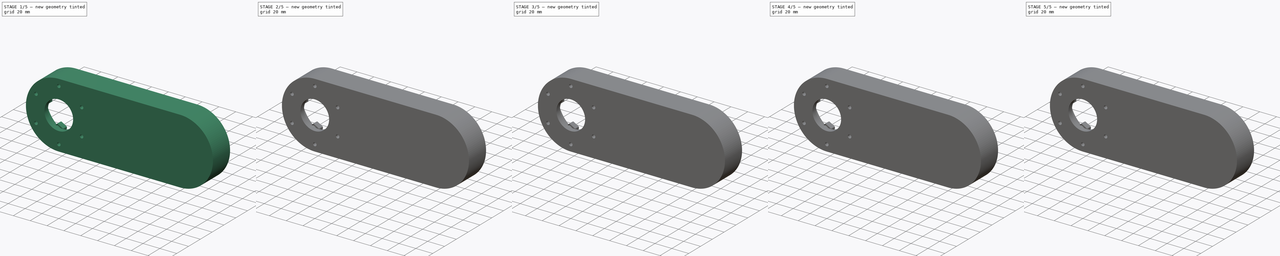
[diagram: build sequence overview — one tinted view per stage of 5, left to right]
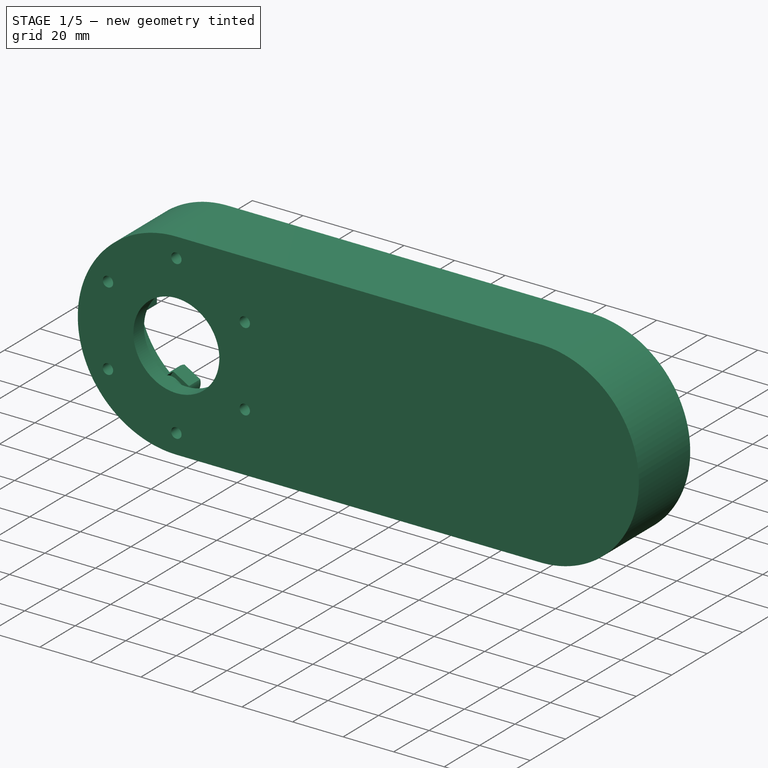
[diagram: stage 1 of 5 — iso view after this stage's code; geometry added in this stage tinted green]
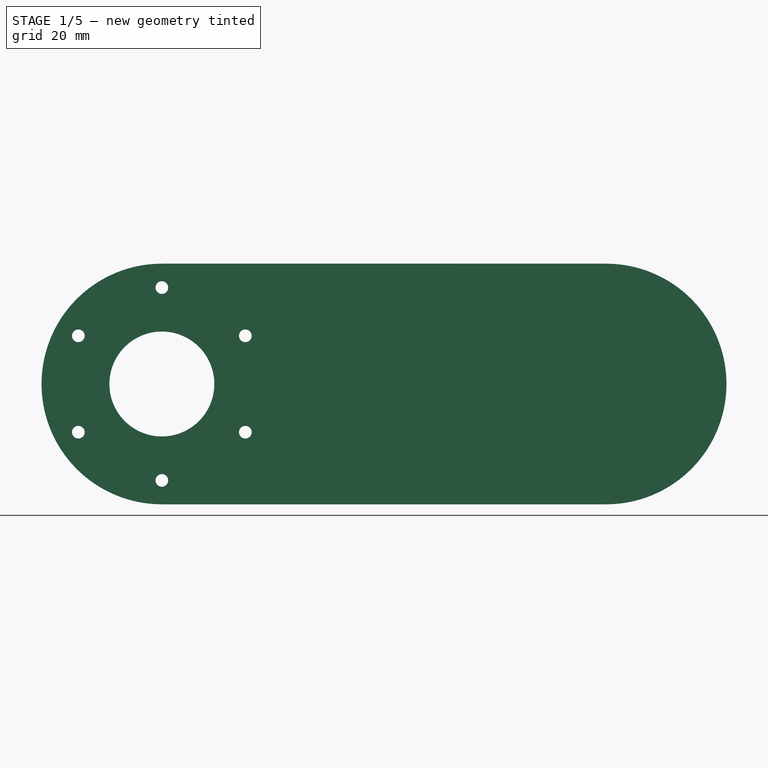
[diagram: stage 1 of 5 — front view after this stage's code; geometry added in this stage tinted green]
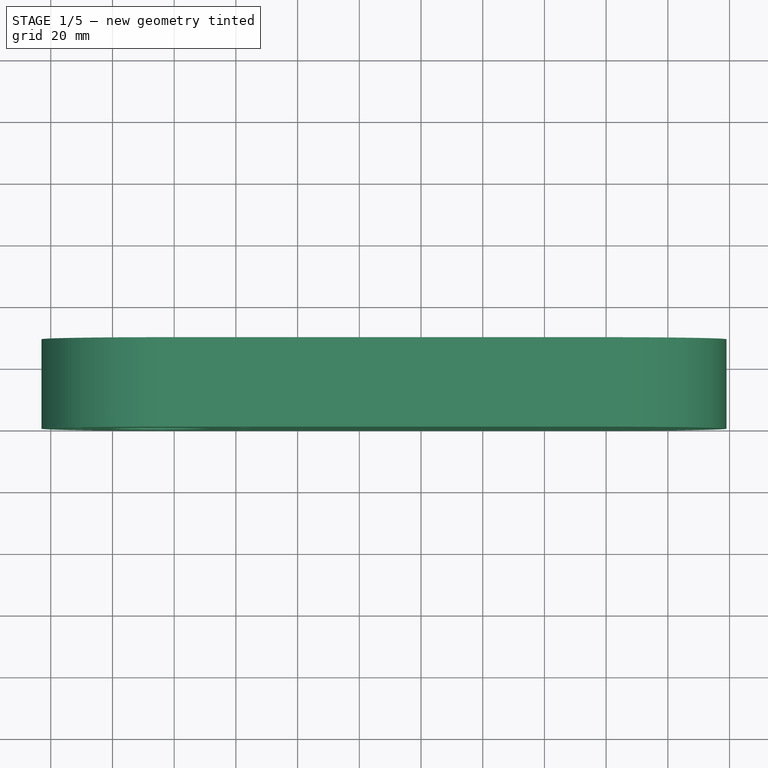
[diagram: stage 1 of 5 — top view after this stage's code; geometry added in this stage tinted green]
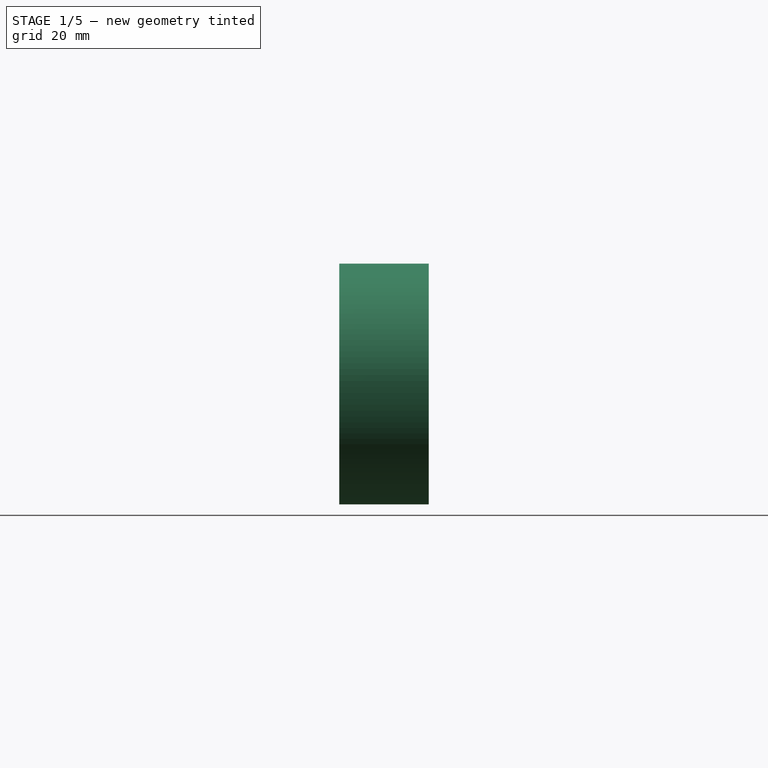
[diagram: stage 1 of 5 — right view after this stage's code; geometry added in this stage tinted green]
FCSTD DOCUMENT  (FreeCAD 0.19R24276 (Git))
Label: Arm2_modified
License: All rights reserved
LicenseURL: http://en.wikipedia.org/wiki/All_rights_reserved
objects: PartDesign::Pocket×13, Sketcher::SketchObject×3, Part::Feature×1, PartDesign::FeatureBase×1, PartDesign::Pad×1, PartDesign::Body×1
note: 34 computed .brp shape members not serialized (recipe doc carries the construction recipe); baked Part::Feature solids carry a one-line shape summary decoded from their .brp

FEATURE [Part::Feature] Part__Feature  label="Arm 2_Arm 2"
  shape: bbox 222 x 31 x 78 mm, 223 faces (baked)
FEATURE [PartDesign::FeatureBase] BaseFeature
  BaseFeature = -> Part__Feature
FEATURE [PartDesign::Pocket] Pocket
  BaseFeature = -> BaseFeature
  Length = 2
  Length2 = 100
  Profile = -> BaseFeature [Face49]
  Type = 0
FEATURE [Sketcher::SketchObject] Sketch
  FullyConstrained = true
  MapMode = 5
  Placement = pos=(0,29,0) rot=(0,0.707107,0.707107;3.14159rad)
  Support = -> [Pocket]
  sketch-geometry (20):
    g0: LineSegment StartX=34.3 StartY=27.96 StartZ=0 EndX=103.3 EndY=27.96 EndZ=0
    g1: LineSegment StartX=103.3 StartY=27.96 StartZ=0 EndX=103.3 EndY=-27.96 EndZ=0
    g2: LineSegment StartX=103.3 StartY=-27.96 StartZ=0 EndX=34.3 EndY=-27.96 EndZ=0
    g3: LineSegment StartX=34.3 StartY=-27.96 StartZ=0 EndX=34.3 EndY=27.96 EndZ=0
    g4: LineSegment StartX=-28 StartY=5 StartZ=0 EndX=-26 EndY=5 EndZ=0
    g5: LineSegment StartX=-26 StartY=5 StartZ=0 EndX=-26 EndY=-5 EndZ=0
    g6: LineSegment StartX=-26 StartY=-5 StartZ=0 EndX=-28 EndY=-5 EndZ=0
    g7: LineSegment StartX=-28 StartY=-5 StartZ=0 EndX=-28 EndY=5 EndZ=0
    g8: LineSegment StartX=-20.75 StartY=19.105 StartZ=0 EndX=-15.23 EndY=23.73 EndZ=0
    g9: LineSegment StartX=-15.23 StartY=23.73 StartZ=0 EndX=-15.23 EndY=-23.73 EndZ=0
    g10: LineSegment StartX=-15.23 StartY=-23.73 StartZ=0 EndX=-20.75 EndY=-19.105 EndZ=0
    g11: LineSegment StartX=-20.75 StartY=-19.105 StartZ=0 EndX=-20.75 EndY=19.105 EndZ=0
    g12: LineSegment StartX=154.85 StartY=26.015 StartZ=0 EndX=161.09 EndY=22.415 EndZ=0
    g13: LineSegment StartX=161.09 StartY=22.415 StartZ=0 EndX=161.09 EndY=-22.415 EndZ=0
    g14: LineSegment StartX=161.09 StartY=-22.415 StartZ=0 EndX=154.85 EndY=-26.015 EndZ=0
    g15: LineSegment StartX=154.85 StartY=-26.015 StartZ=0 EndX=154.85 EndY=26.015 EndZ=0
    g16: LineSegment StartX=170 StartY=5 StartZ=0 EndX=172 EndY=5 EndZ=0
    g17: LineSegment StartX=172 StartY=5 StartZ=0 EndX=172 EndY=-5 EndZ=0
    g18: LineSegment StartX=172 StartY=-5 StartZ=0 EndX=170 EndY=-5 EndZ=0
    g19: LineSegment StartX=170 StartY=-5 StartZ=0 EndX=170 EndY=5 EndZ=0
  constraints (53):
    c: Coincident(g0,g1)
    c: Coincident(g1,g2)
    c: Coincident(g2,g3)
    c: Coincident(g3,g0)
    c: Horizontal(g0)
    c: Horizontal(g2)
    c: Vertical(g1)
    c: Symmetric(g0,g2,g-1)
    c: DistanceY(g3,g3) = 55.92
    c: DistanceX(g2) = 34.3
    c: DistanceX(g2,g2) = 69
    c: Coincident(g4,g5)
    c: Coincident(g5,g6)
    c: Coincident(g6,g7)
    c: Coincident(g7,g4)
    c: Horizontal(g4)
    c: Horizontal(g6)
    c: Vertical(g5)
    c: Symmetric(g4,g6,g-1)
    c: DistanceY(g7,g7) = 10
    c: DistanceX(g4,g4) = 2
    c: DistanceX(g4) = -26
    c: Coincident(g8,g9)
    c: Coincident(g9,g10)
    c: Coincident(g10,g11)
    c: Coincident(g11,g8)
    c: Symmetric(g8,g10,g-1)
    c: Symmetric(g9,g8,g-1)
    c: DistanceY(g11,g11) = 38.21
    c: DistanceY(g9,g9) = 47.46
    c: DistanceX(g8,g8) = 5.52
    c: DistanceX(g8) = -15.23
    c: Coincident(g12,g13)
    c: Coincident(g13,g14)
    c: Coincident(g14,g15)
    c: Coincident(g15,g12)
    c: Symmetric(g12,g14,g-1)
    c: Symmetric(g12,g13,g-1)
    c: DistanceY(g13,g13) = 44.83
    c: DistanceY(g15,g15) = 52.03
    c: DistanceX(g12,g12) = 6.24
    c: Coincident(g16,g17)
    c: Coincident(g17,g18)
    c: Coincident(g18,g19)
    c: Coincident(g19,g16)
    c: Horizontal(g16)
    c: Horizontal(g18)
    c: Vertical(g19)
    c: Symmetric(g16,g17,g-1)
    c: DistanceY(g17,g17) = 10
    c: DistanceX(g18,g18) = 2
    c: DistanceX(g18) = 170
    c: DistanceX(g14) = 154.85
FEATURE [PartDesign::Pocket] Pocket001
  BaseFeature = -> Pocket
  Length = 9.99
  Length2 = 100
  Profile = -> Sketch
  Type = 0
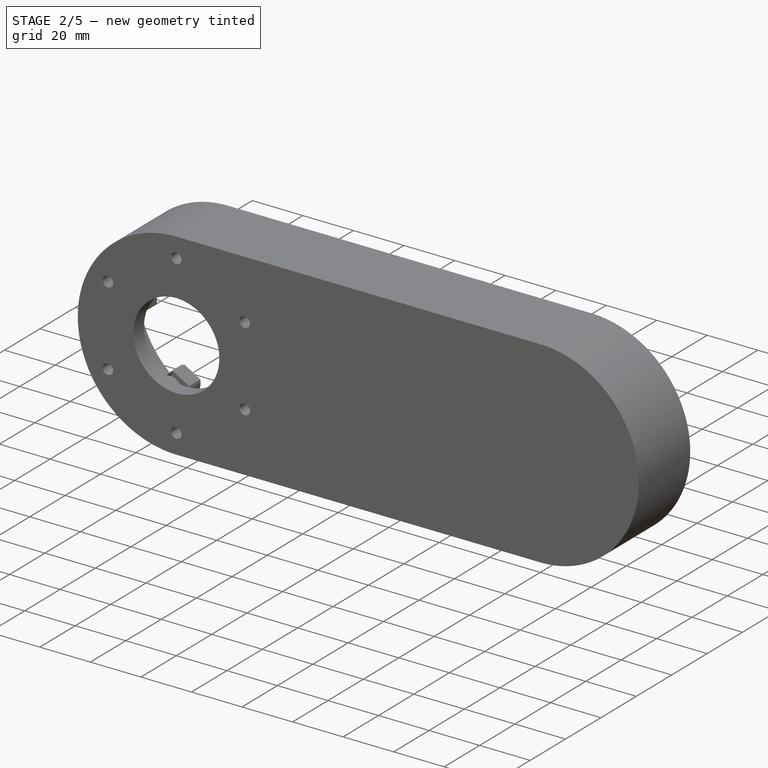
[diagram: stage 2 of 5 — iso view after this stage's code; geometry added in this stage tinted green]
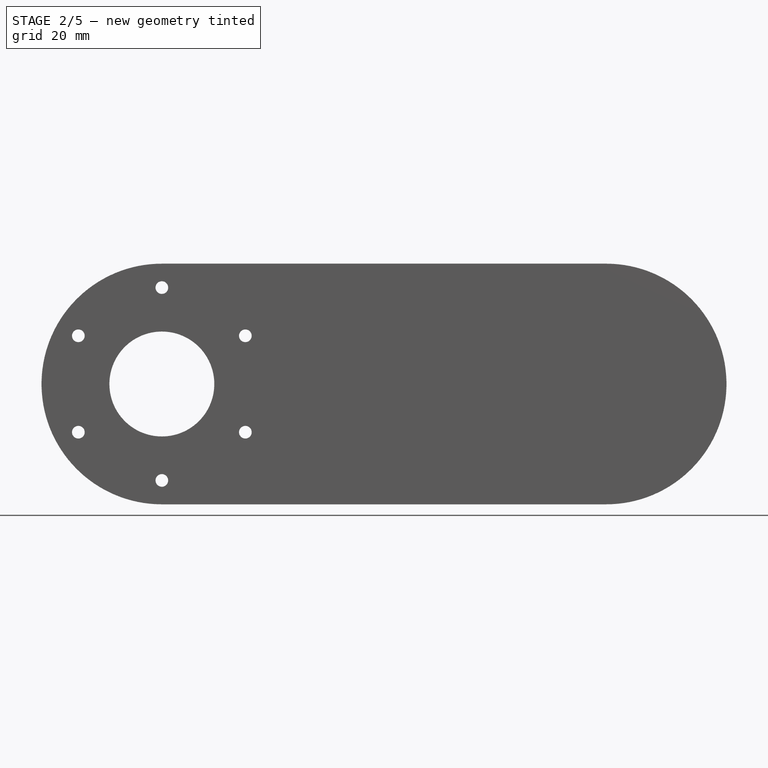
[diagram: stage 2 of 5 — front view after this stage's code; geometry added in this stage tinted green]
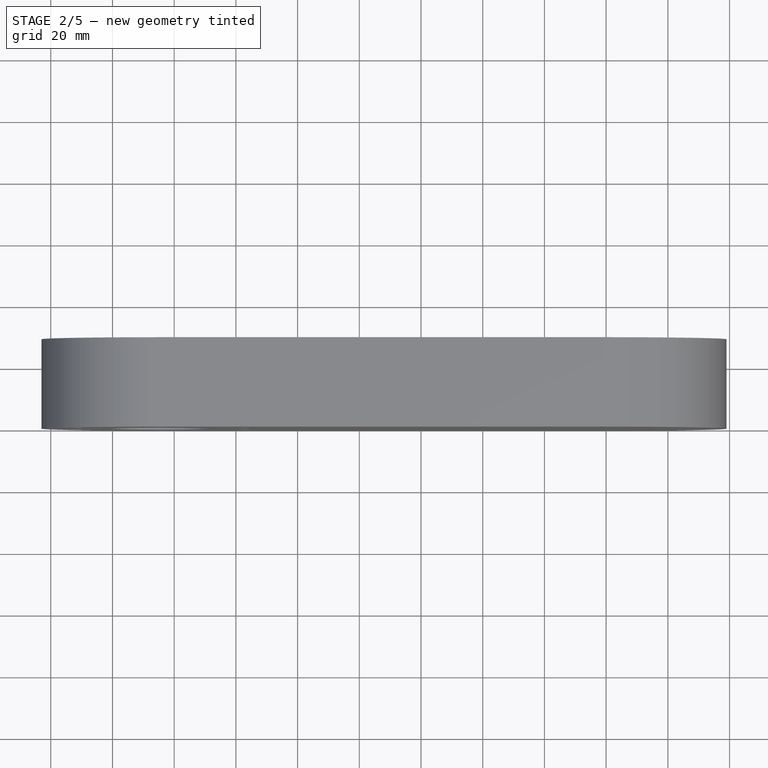
[diagram: stage 2 of 5 — top view after this stage's code; geometry added in this stage tinted green]
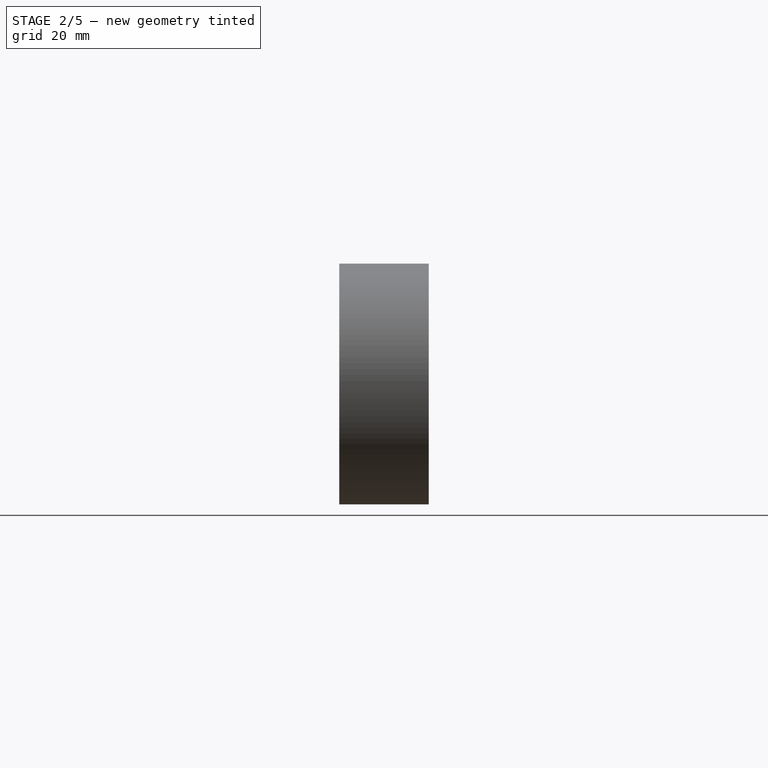
[diagram: stage 2 of 5 — right view after this stage's code; geometry added in this stage tinted green]
FEATURE [Sketcher::SketchObject] Sketch001
  FullyConstrained = true
  MapMode = 5
  Placement = pos=(0,12,1.6e-15) rot=(0,0.707107,0.707107;3.14159rad)
  Support = -> [Pocket001]
  sketch-geometry (16):
    g0: LineSegment StartX=4.9 StartY=8.1 StartZ=0 EndX=9.6 EndY=8.1 EndZ=0
    g1: LineSegment StartX=9.6 StartY=8.1 StartZ=0 EndX=9.6 EndY=-8.1 EndZ=0
    g2: LineSegment StartX=9.6 StartY=-8.1 StartZ=0 EndX=4.9 EndY=-8.1 EndZ=0
    g3: LineSegment StartX=4.9 StartY=-8.1 StartZ=0 EndX=4.9 EndY=8.1 EndZ=0
    g4: LineSegment StartX=22.9 StartY=8.1 StartZ=0 EndX=27.6 EndY=8.1 EndZ=0
    g5: LineSegment StartX=27.6 StartY=8.1 StartZ=0 EndX=27.6 EndY=-8.1 EndZ=0
    g6: LineSegment StartX=27.6 StartY=-8.1 StartZ=0 EndX=22.9 EndY=-8.1 EndZ=0
    g7: LineSegment StartX=22.9 StartY=-8.1 StartZ=0 EndX=22.9 EndY=8.1 EndZ=0
    g8: LineSegment StartX=68.9 StartY=8.1 StartZ=0 EndX=73.6 EndY=8.1 EndZ=0
    g9: LineSegment StartX=73.6 StartY=8.1 StartZ=0 EndX=73.6 EndY=-8.1 EndZ=0
    g10: LineSegment StartX=73.6 StartY=-8.1 StartZ=0 EndX=68.9 EndY=-8.1 EndZ=0
    g11: LineSegment StartX=68.9 StartY=-8.1 StartZ=0 EndX=68.9 EndY=8.1 EndZ=0
    g12: LineSegment StartX=117.9 StartY=8.1 StartZ=0 EndX=122.6 EndY=8.1 EndZ=0
    g13: LineSegment StartX=122.6 StartY=8.1 StartZ=0 EndX=122.6 EndY=-8.1 EndZ=0
    g14: LineSegment StartX=122.6 StartY=-8.1 StartZ=0 EndX=117.9 EndY=-8.1 EndZ=0
    g15: LineSegment StartX=117.9 StartY=-8.1 StartZ=0 EndX=117.9 EndY=8.1 EndZ=0
  constraints (47):
    c: Coincident(g0,g1)
    c: Coincident(g1,g2)
    c: Coincident(g2,g3)
    c: Coincident(g3,g0)
    c: Horizontal(g0)
    c: Horizontal(g2)
    c: Vertical(g1)
    c: Coincident(g4,g5)
    c: Coincident(g5,g6)
    c: Coincident(g6,g7)
    c: Coincident(g7,g4)
    c: Horizontal(g4)
    c: Horizontal(g6)
    c: Vertical(g5)
    c: Vertical(g7)
    c: Coincident(g8,g9)
    c: Coincident(g9,g10)
    c: Coincident(g10,g11)
    c: Coincident(g11,g8)
    c: Horizontal(g8)
    c: Horizontal(g10)
    c: Vertical(g9)
    c: Vertical(g11)
    c: Coincident(g12,g13)
    c: Coincident(g13,g14)
    c: Coincident(g14,g15)
    c: Coincident(g15,g12)
    c: Horizontal(g12)
    c: Horizontal(g14)
    c: Vertical(g13)
    c: Vertical(g15)
    c: Symmetric(g0,g2,g-1)
    c: Equal(g0,g4)
    c: Equal(g4,g8)
    c: Equal(g8,g12)
    c: Equal(g1,g7)
    c: Equal(g7,g11)
    c: Equal(g11,g15)
    c: DistanceX(g0) = 4.9
    c: DistanceY(g3,g3) = 16.2
    c: DistanceX(g0,g0) = 4.7
    c: PointOnObject(g4,g0)
    c: PointOnObject(g8,g0)
    c: PointOnObject(g12,g0)
    c: DistanceX(g0,g4) = 18
    c: DistanceX(g4,g8) = 46
    c: DistanceX(g8,g12) = 49
FEATURE [PartDesign::Pocket] Pocket002
  BaseFeature = -> Pocket001
  Length = 8
  Length2 = 100
  Profile = -> Sketch001
  Type = 0
FEATURE [Sketcher::SketchObject] Sketch002
  ExternalGeometry = -> [Pocket002]
  FullyConstrained = true
  MapMode = 5
  Placement = pos=(0,29,0) rot=(0,0.707107,0.707107;3.14159rad)
  Support = -> [Pocket002]
  sketch-geometry (10):
    g0: Circle CenterX=-20.2478 CenterY=24.1304 CenterZ=0 NormalX=0 NormalY=0 NormalZ=1 AngleXU=0 Radius=2.1
    g1: Circle CenterX=39 CenterY=31.5 CenterZ=0 NormalX=0 NormalY=0 NormalZ=1 AngleXU=0 Radius=2.1
    g2: Circle CenterX=99 CenterY=31.5 CenterZ=0 NormalX=0 NormalY=0 NormalZ=1 AngleXU=0 Radius=2.1
    g3: Circle CenterX=159.75 CenterY=27.2798 CenterZ=0 NormalX=0 NormalY=0 NormalZ=1 AngleXU=0 Radius=2.1
    g4: Circle CenterX=175.5 CenterY=0 CenterZ=0 NormalX=0 NormalY=0 NormalZ=1 AngleXU=0 Radius=2.1
    g5: Circle CenterX=159.75 CenterY=-27.2798 CenterZ=0 NormalX=0 NormalY=0 NormalZ=1 AngleXU=0 Radius=2.1
    g6: Circle CenterX=99 CenterY=-31.5 CenterZ=0 NormalX=0 NormalY=0 NormalZ=1 AngleXU=0 Radius=2.1
    g7: Circle CenterX=-20.2478 CenterY=-24.1304 CenterZ=0 NormalX=0 NormalY=0 NormalZ=1 AngleXU=0 Radius=2.1
    g8: Circle CenterX=-31.5 CenterY=0 CenterZ=0 NormalX=0 NormalY=0 NormalZ=1 AngleXU=0 Radius=2.1
    g9: Circle CenterX=39 CenterY=-31.5 CenterZ=0 NormalX=0 NormalY=0 NormalZ=1 AngleXU=0 Radius=2.1
  constraints (20):
    c: Coincident(g0,g-11)
    c: Coincident(g1,g-12)
    c: Coincident(g2,g-3)
    c: Coincident(g3,g-4)
    c: Coincident(g4,g-5)
    c: Coincident(g5,g-6)
    c: Coincident(g6,g-7)
    c: Coincident(g7,g-9)
    c: Coincident(g8,g-10)
    c: Equal(g8,g0)
    c: Equal(g0,g1)
    c: Equal(g1,g2)
    c: Equal(g2,g3)
    c: Equal(g3,g4)
    c: Equal(g4,g5)
    c: Equal(g5,g6)
    c: Equal(g6,g7)
    c: Coincident(g9,g-8)
    c: Equal(g9,g7)
    c: Radius(g8) = 2.1
FEATURE [PartDesign::Pad] Pad
  BaseFeature = -> Pocket002
  Direction = (1,1,1)
  Length = 0.01
  Length2 = 6.4
  Profile = -> Sketch002
  Type = 4
FEATURE [PartDesign::Pocket] Pocket003
  BaseFeature = -> Pad
  Length = 6.11
  Length2 = 100
  Profile = -> Pad [Face183]
  Type = 0
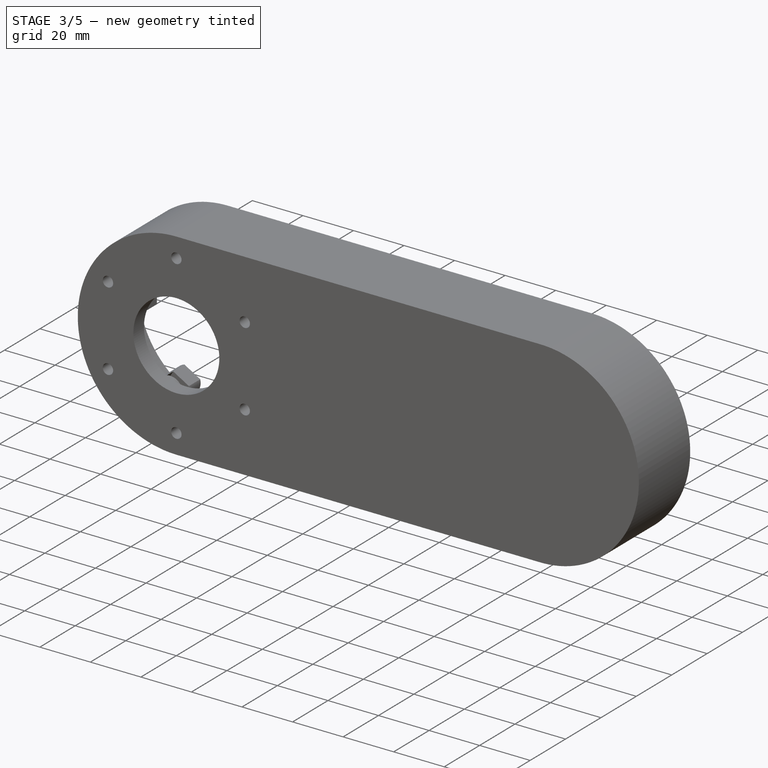
[diagram: stage 3 of 5 — iso view after this stage's code; geometry added in this stage tinted green]
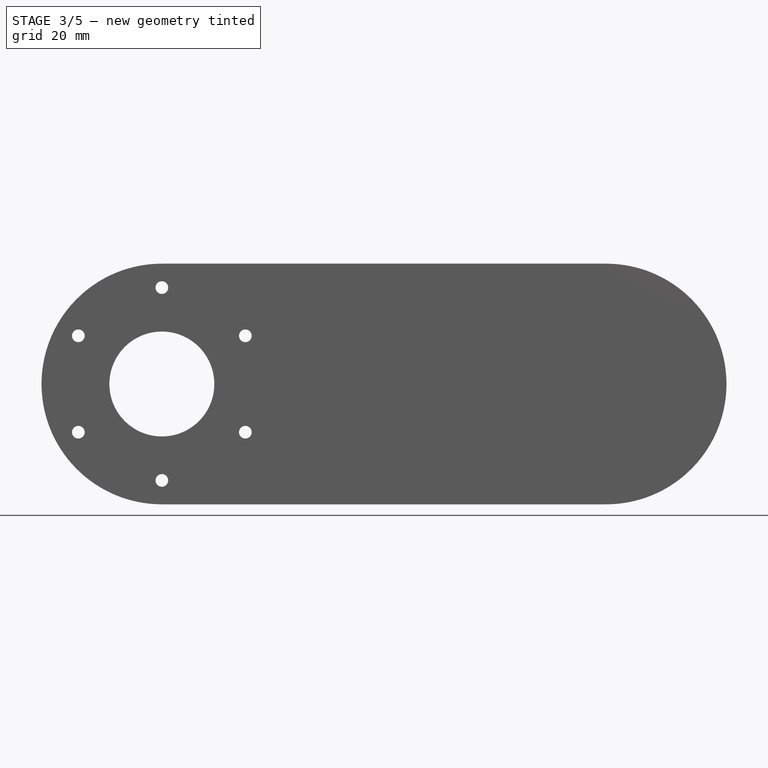
[diagram: stage 3 of 5 — front view after this stage's code; geometry added in this stage tinted green]
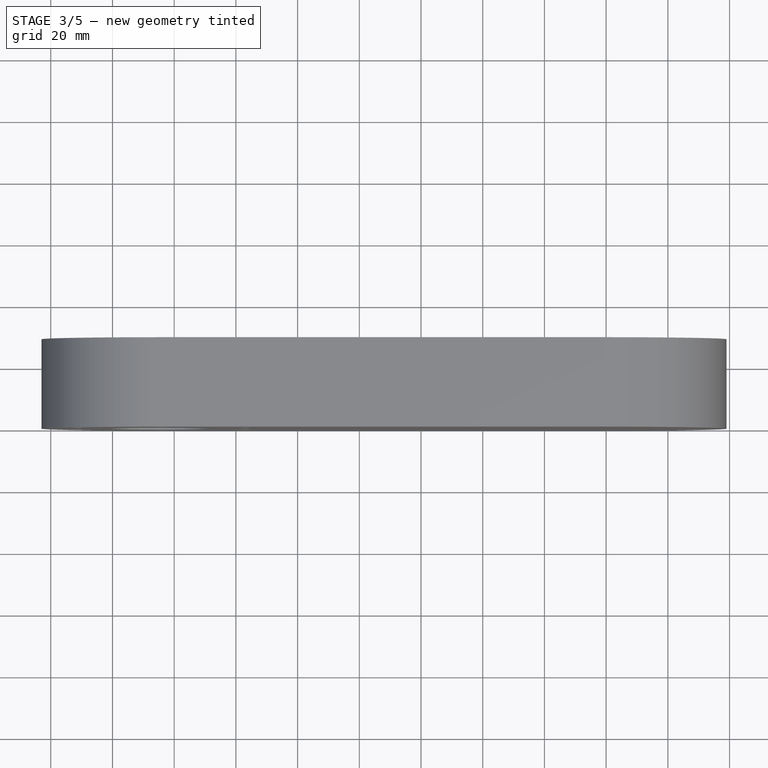
[diagram: stage 3 of 5 — top view after this stage's code; geometry added in this stage tinted green]
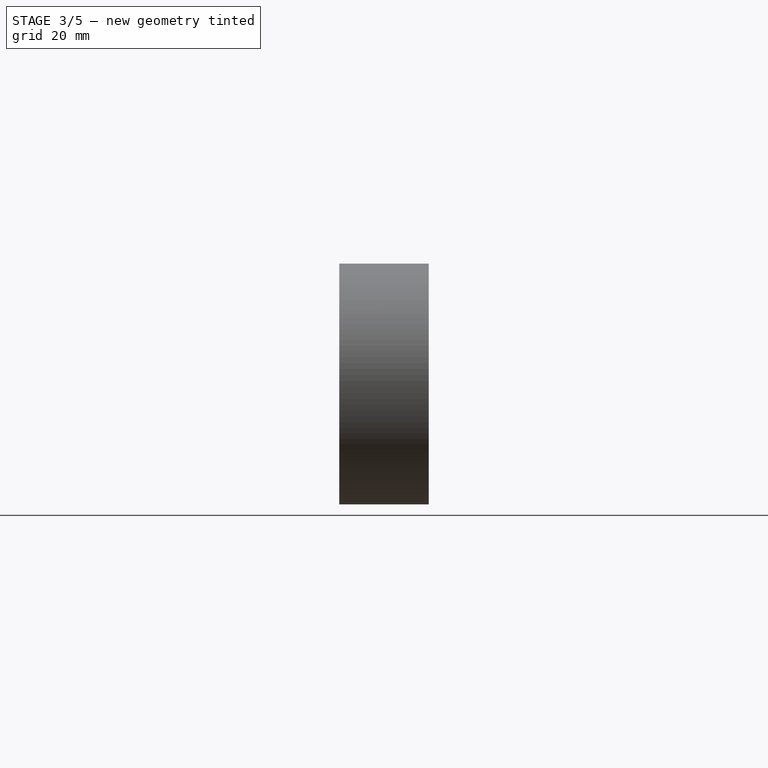
[diagram: stage 3 of 5 — right view after this stage's code; geometry added in this stage tinted green]
FEATURE [PartDesign::Pocket] Pocket004
  BaseFeature = -> Pocket003
  Length = 6.11
  Length2 = 100
  Profile = -> Pocket003 [Face184]
  Type = 0
FEATURE [PartDesign::Pocket] Pocket005
  BaseFeature = -> Pocket004
  Length = 6.11
  Length2 = 100
  Profile = -> Pocket004 [Face177]
  Type = 0
FEATURE [PartDesign::Pocket] Pocket006
  BaseFeature = -> Pocket005
  Length = 6.11
  Length2 = 100
  Profile = -> Pocket005 [Face176]
  Type = 0
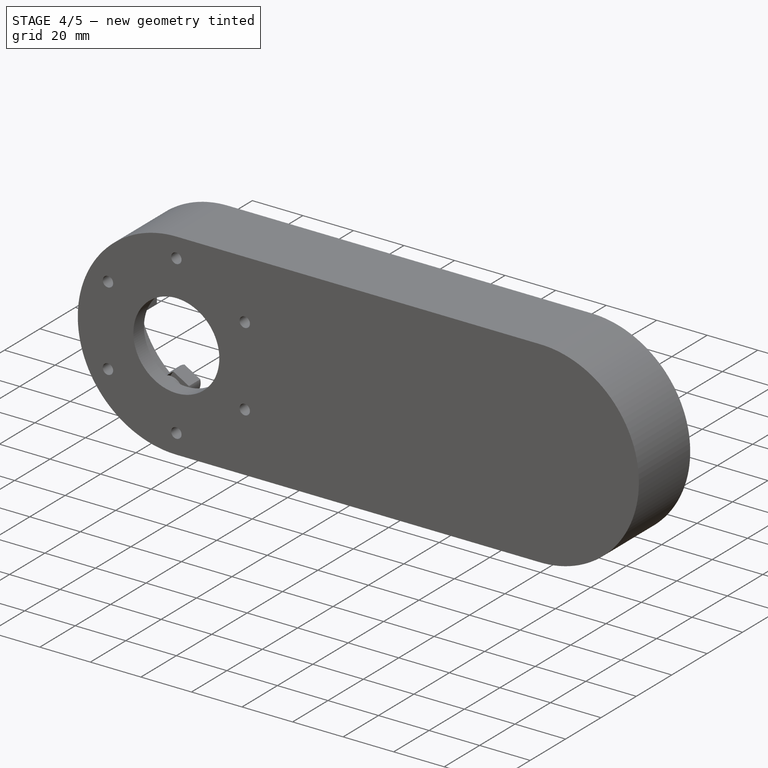
[diagram: stage 4 of 5 — iso view after this stage's code; geometry added in this stage tinted green]
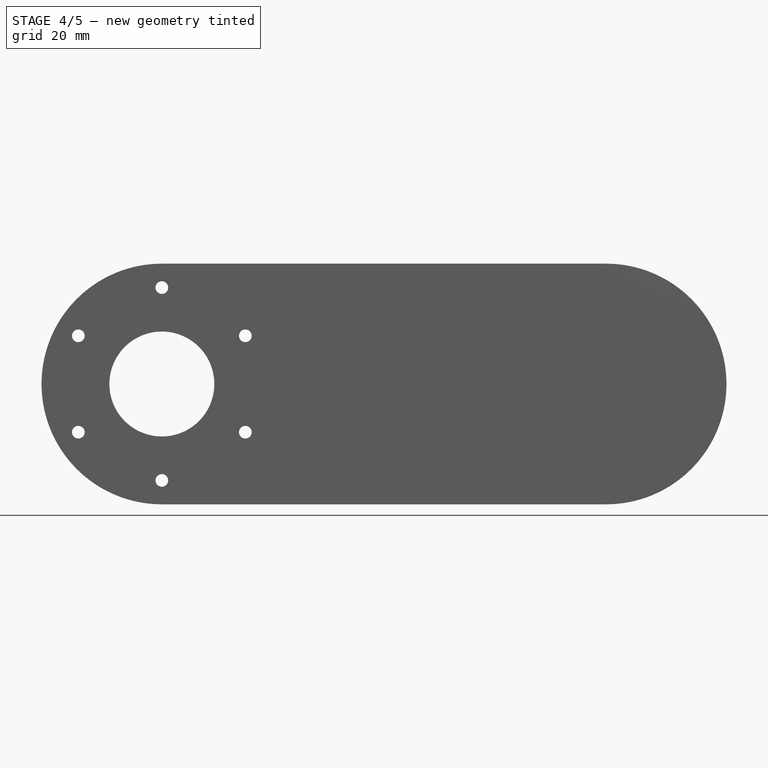
[diagram: stage 4 of 5 — front view after this stage's code; geometry added in this stage tinted green]
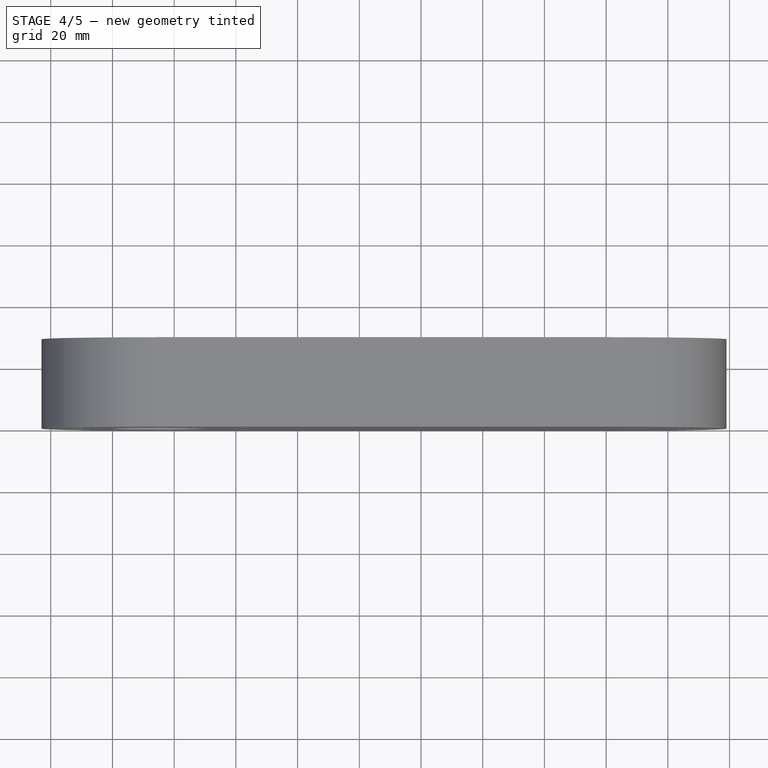
[diagram: stage 4 of 5 — top view after this stage's code; geometry added in this stage tinted green]
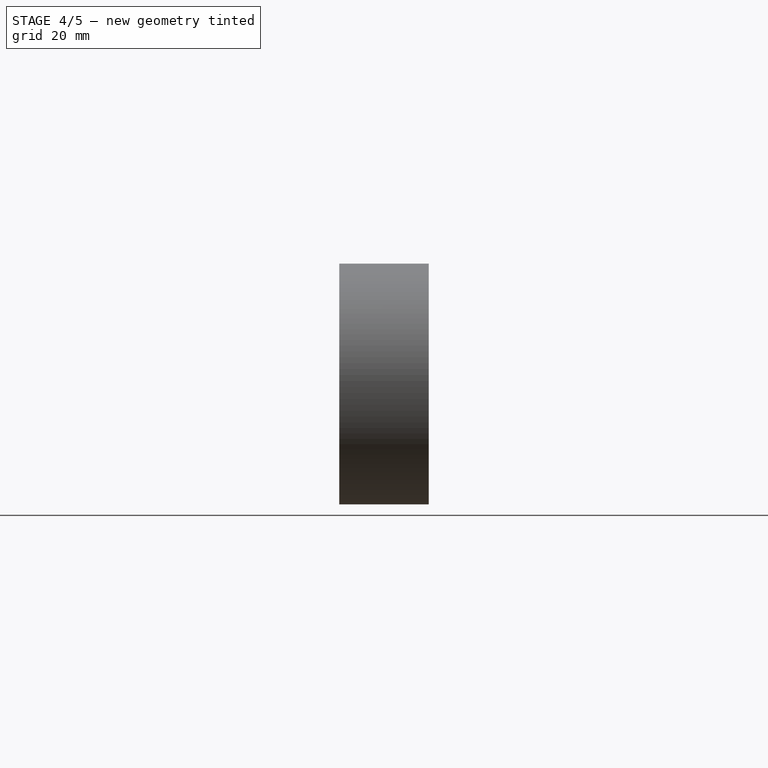
[diagram: stage 4 of 5 — right view after this stage's code; geometry added in this stage tinted green]
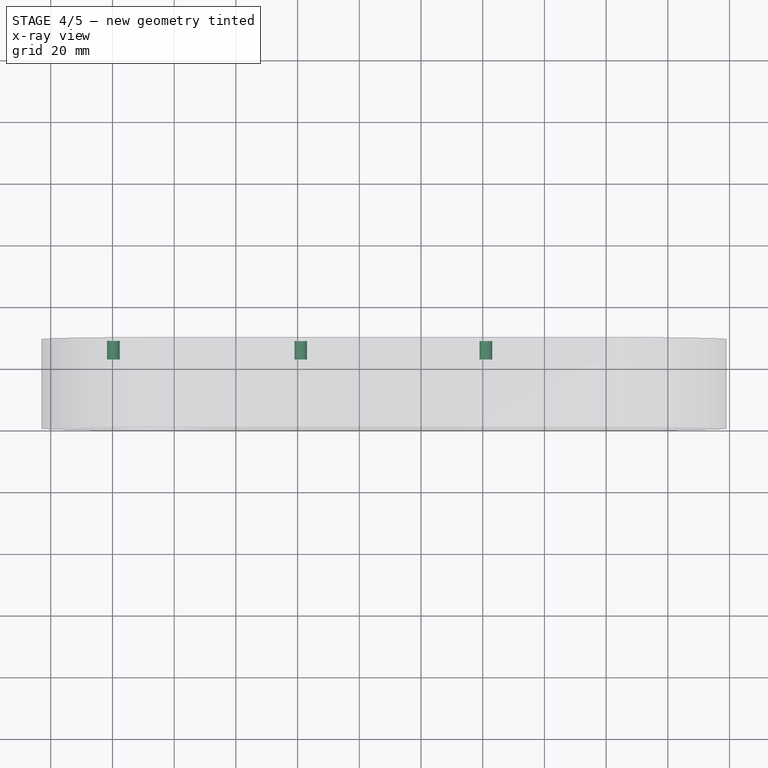
[diagram: stage 4 of 5 — x-ray composite at the top view; earlier geometry ghosted, this stage's added geometry solid]
FEATURE [PartDesign::Pocket] Pocket007
  BaseFeature = -> Pocket006
  Length = 6.11
  Length2 = 100
  Profile = -> Pocket006 [Face175]
  Type = 0
FEATURE [PartDesign::Pocket] Pocket008
  BaseFeature = -> Pocket007
  Length = 6.11
  Length2 = 100
  Profile = -> Pocket007 [Face172]
  Type = 0
FEATURE [PartDesign::Pocket] Pocket009
  BaseFeature = -> Pocket008
  Length = 6.11
  Length2 = 100
  Profile = -> Pocket008 [Face170]
  Type = 0
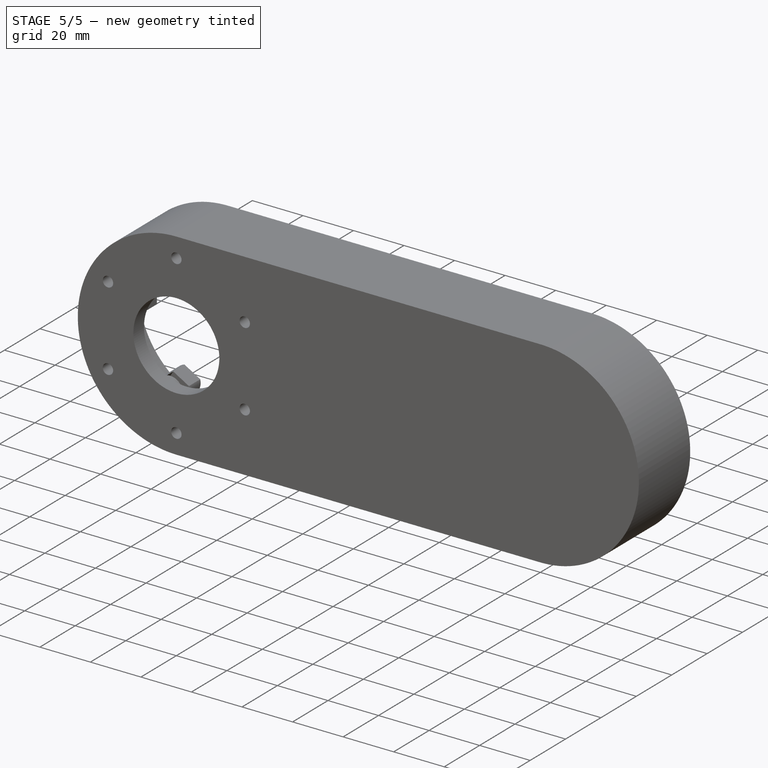
[diagram: stage 5 of 5 — iso view after this stage's code; geometry added in this stage tinted green]
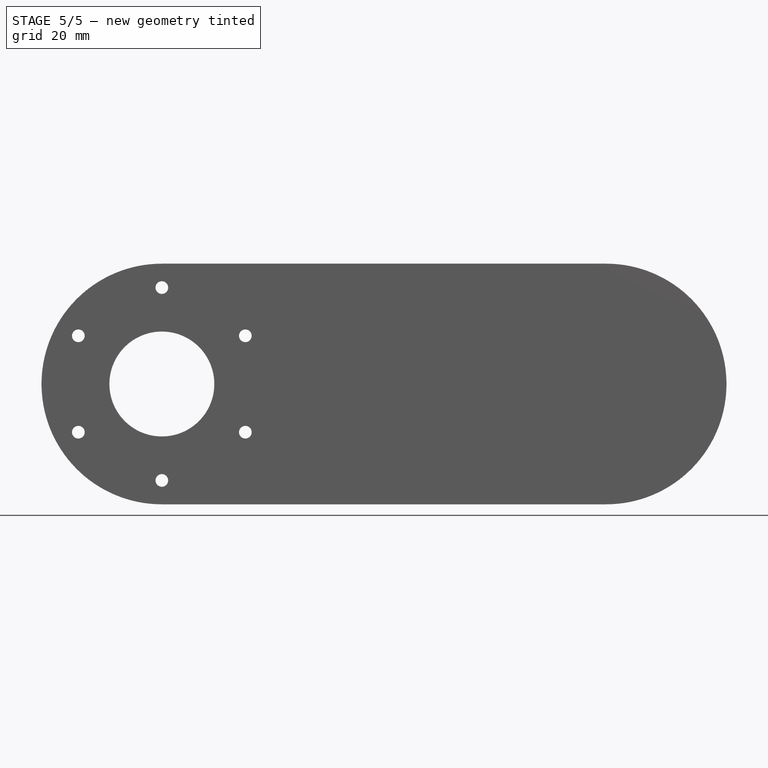
[diagram: stage 5 of 5 — front view after this stage's code; geometry added in this stage tinted green]
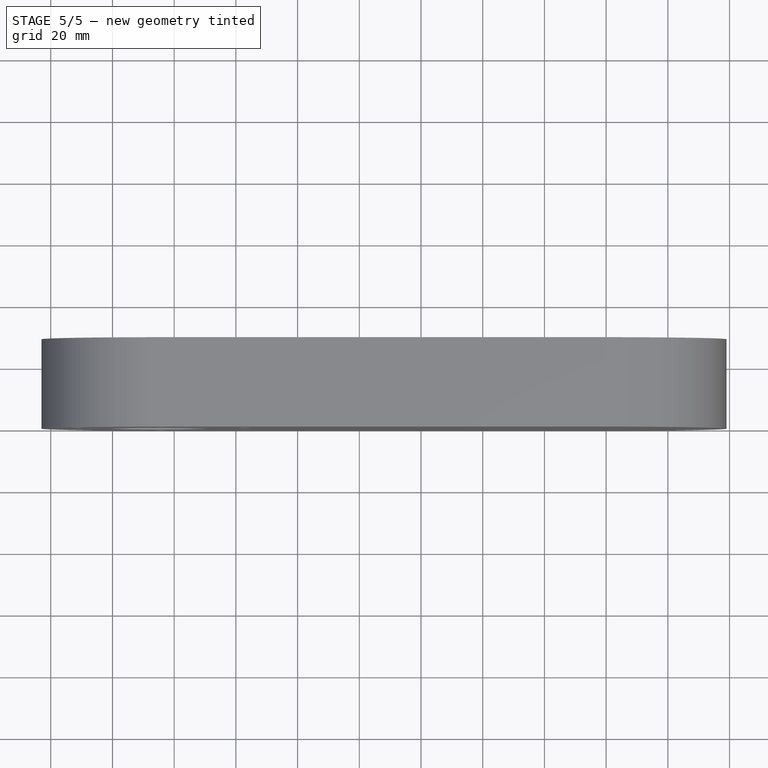
[diagram: stage 5 of 5 — top view after this stage's code; geometry added in this stage tinted green]
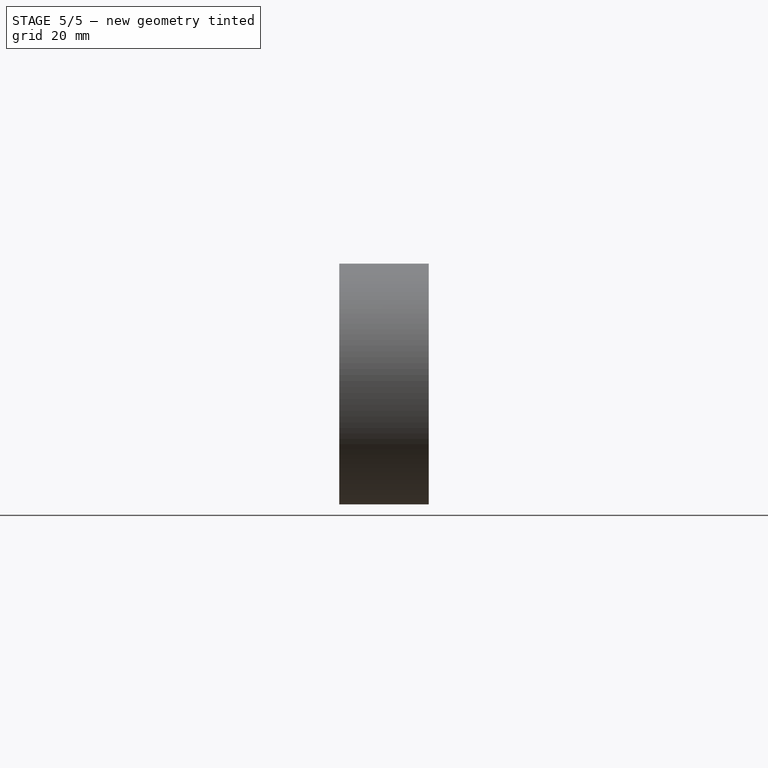
[diagram: stage 5 of 5 — right view after this stage's code; geometry added in this stage tinted green]
FEATURE [PartDesign::Pocket] Pocket010
  BaseFeature = -> Pocket009
  Length = 6.11
  Length2 = 100
  Profile = -> Pocket009 [Face171]
  Type = 0
FEATURE [PartDesign::Pocket] Pocket011
  BaseFeature = -> Pocket010
  Length = 6.11
  Length2 = 100
  Profile = -> Pocket010 [Face173]
  Type = 0
FEATURE [PartDesign::Pocket] Pocket012
  BaseFeature = -> Pocket011
  Length = 6.11
  Length2 = 100
  Profile = -> Pocket011 [Face174]
  Type = 0
FEATURE [PartDesign::Body] Body
  BaseFeature = -> Part__Feature
  Group = -> [BaseFeature,Pocket,Sketch,Pocket001,Sketch001,Pocket002,Sketch002,Pad,Pocket003,Pocket004,Pocket005,Pocket006,Pocket007,Pocket008,Pocket009,Pocket010,Pocket011,Pocket012]
  Origin = -> Origin
  Tip = -> Pocket012
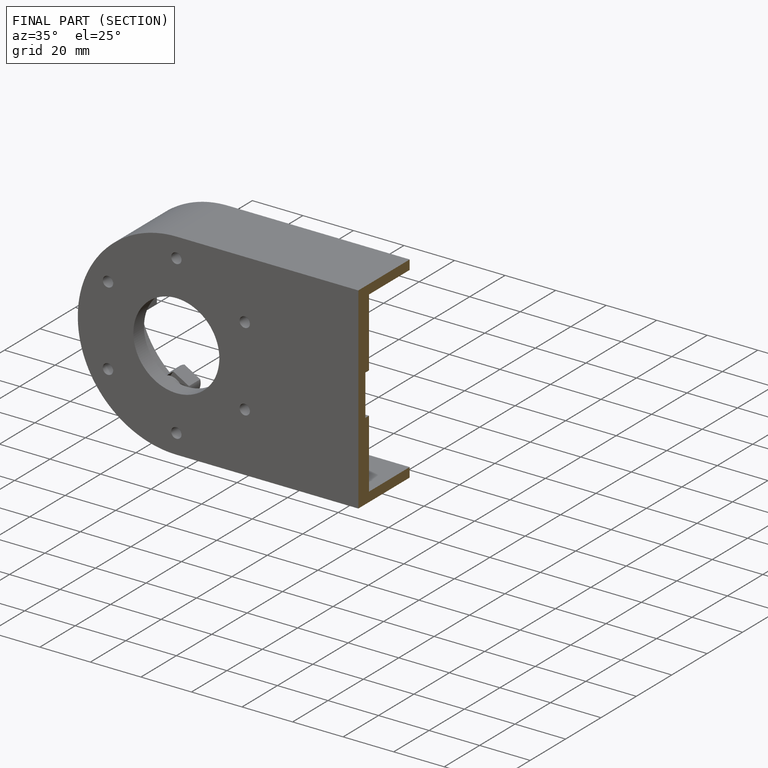
[diagram: finished part — half-section view (interior)]
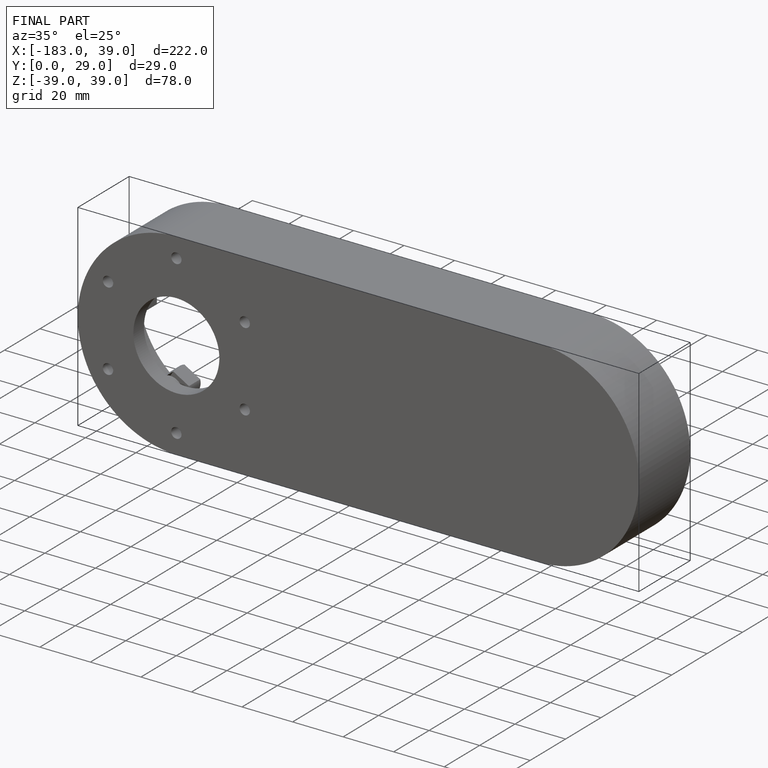
[diagram: finished part — iso view with bounding-box wireframe]
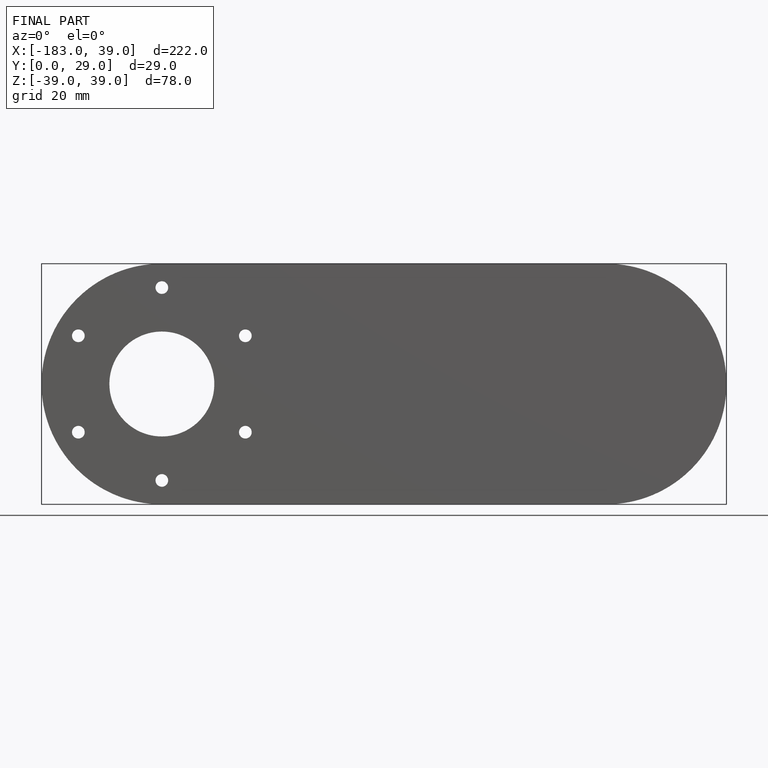
[diagram: finished part — front view with bounding-box wireframe]
